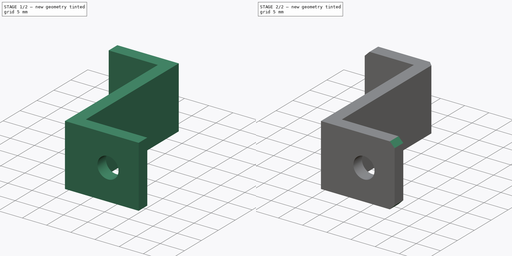
[diagram: build sequence overview — one tinted view per stage of 2, left to right]
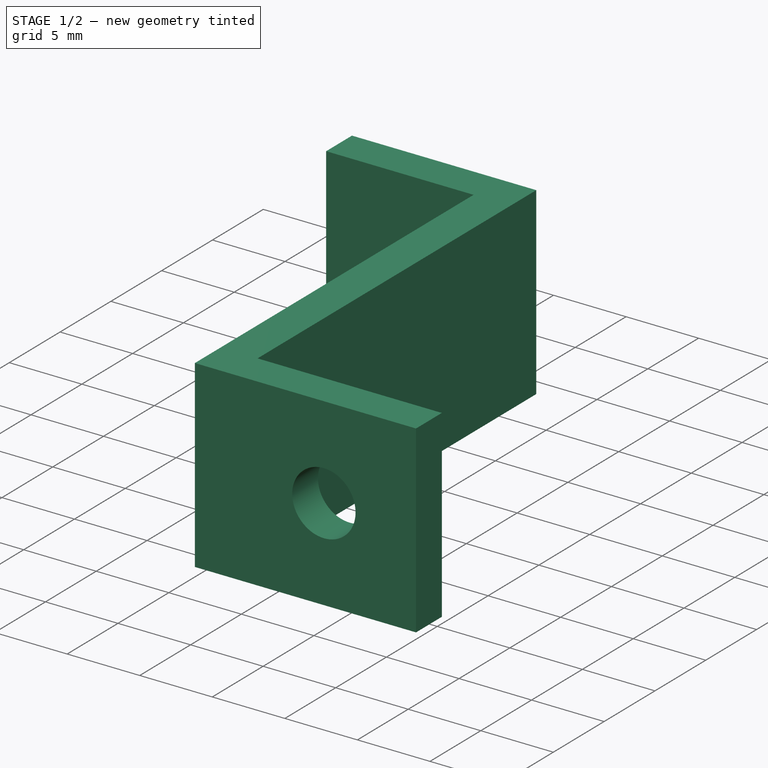
[diagram: stage 1 of 2 — iso view after this stage's code; geometry added in this stage tinted green]
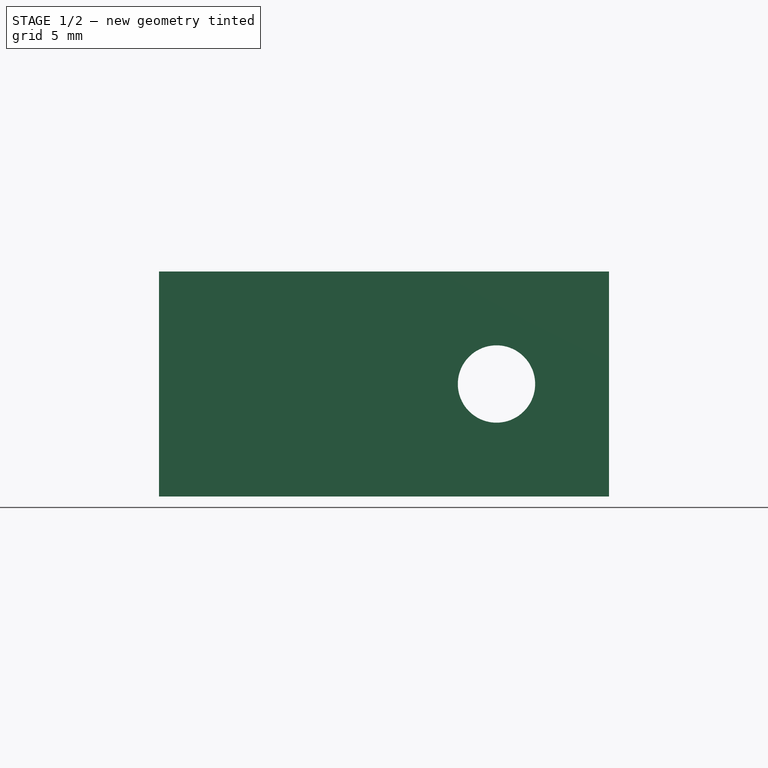
[diagram: stage 1 of 2 — front view after this stage's code; geometry added in this stage tinted green]
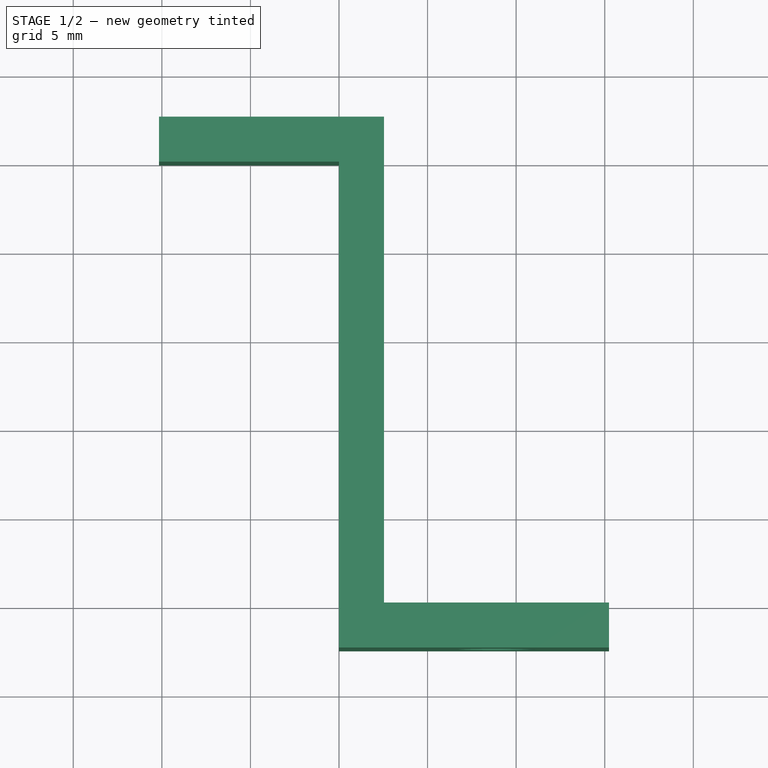
[diagram: stage 1 of 2 — top view after this stage's code; geometry added in this stage tinted green]
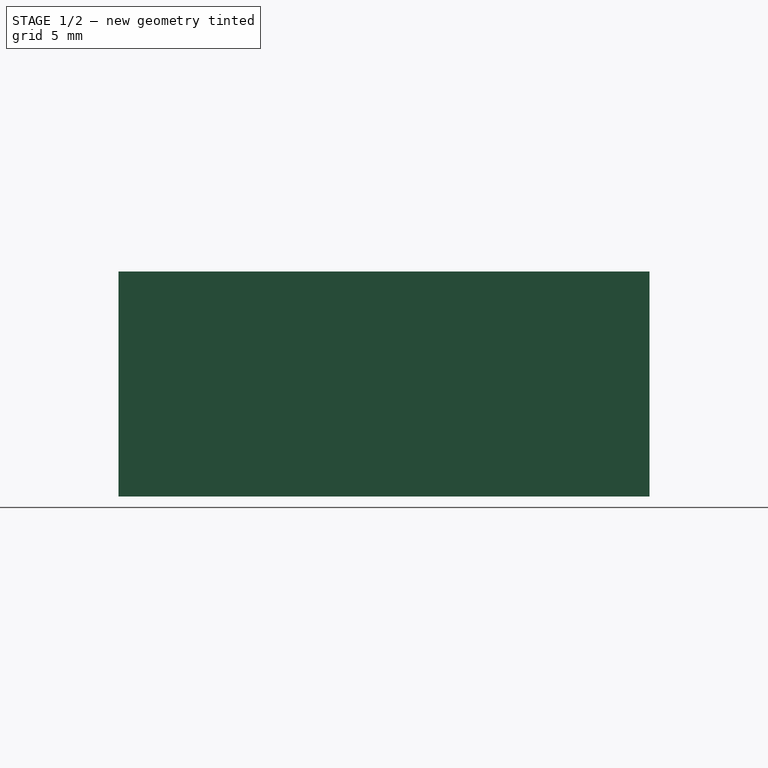
[diagram: stage 1 of 2 — right view after this stage's code; geometry added in this stage tinted green]
FCSTD DOCUMENT  (FreeCAD 0.21R31917 (Git))
Label: ethernet switch brackets
License: All rights reserved
LicenseURL: http://en.wikipedia.org/wiki/All_rights_reserved
objects: Sketcher::SketchObject×2, PartDesign::Pad×1, PartDesign::Pocket×1, PartDesign::Chamfer×1, PartDesign::Body×1
note: 9 computed .brp shape members not serialized (recipe doc carries the construction recipe); baked Part::Feature solids carry a one-line shape summary decoded from their .brp

FEATURE [Sketcher::SketchObject] Sketch
  FullyConstrained = true
  MapMode = 5
  Support = -> [XY_Plane]
  sketch-geometry (9):
    g0: LineSegment StartX=0 StartY=-27.432 StartZ=0 EndX=15.24 EndY=-27.432 EndZ=0
    g1: LineSegment StartX=15.24 StartY=-27.432 StartZ=0 EndX=15.24 EndY=-24.892 EndZ=0
    g2: LineSegment StartX=15.24 StartY=-24.892 StartZ=0 EndX=2.54 EndY=-24.892 EndZ=0
    g3: LineSegment StartX=2.54 StartY=-24.892 StartZ=0 EndX=2.54 EndY=2.54 EndZ=0
    g4: LineSegment StartX=2.54 StartY=2.54 StartZ=0 EndX=-10.16 EndY=2.54 EndZ=0
    g5: LineSegment StartX=-10.16 StartY=2.54 StartZ=0 EndX=-10.16 EndY=0 EndZ=0
    g6: LineSegment StartX=-10.16 StartY=0 StartZ=0 EndX=0 EndY=0 EndZ=0
    g7: LineSegment StartX=0 StartY=0 StartZ=0 EndX=0 EndY=-27.432 EndZ=0
    g8: LineSegment StartX=0 StartY=-24.892 StartZ=0 EndX=2.54 EndY=-24.892 EndZ=0
  constraints (26):
    c: PointOnObject(g0,g-2)
    c: Horizontal(g0)
    c: Coincident(g0,g1)
    c: Coincident(g1,g2)
    c: Horizontal(g2)
    c: Vertical(g1)
    c: DistanceY(g0,g1) = 2.54  'thickness'
    c: Coincident(g2,g3)
    c: Vertical(g3)
    c: Coincident(g3,g4)
    c: Horizontal(g4)
    c: Coincident(g4,g5)
    c: Vertical(g5)
    c: Coincident(g5,g6)
    c: Horizontal(g6)
    c: Coincident(g6,g7)
    c: Coincident(g0,g7)
    c: Equal(g1,g5)
    c: PointOnObject(g8,g7)
    c: Horizontal(g8)
    c: Equal(g8,g1)
    c: Coincident(g6,g-1)
    c: DistanceY(g0,g6) = 27.432
    c: DistanceX(g4,g3) = 12.7  'overhang_len'
    c: Coincident(g8,g2)
    c: Equal(g4,g2)
FEATURE [PartDesign::Pad] Pad
  Direction = (0,0,1)
  Length = 12.7
  Length2 = 10
  Profile = -> Sketch
  ReferenceAxis = -> Sketch [N_Axis]
  Type = 0
FEATURE [Sketcher::SketchObject] Sketch001  label="Holes"
  FullyConstrained = true
  MapMode = 5
  Placement = pos=(0,0,0) rot=(1,0,0;1.5708rad)
  Support = -> [XZ_Plane]
  expr: Constraints[10] = Pad.Length
  expr: Constraints[20] = Sketch.Constraints.thickness
  expr: Constraints[9] = Sketch.Constraints.overhang_len
  sketch-geometry (12):
    g0: LineSegment StartX=2.54 StartY=12.7 StartZ=0 EndX=2.54 EndY=0 EndZ=0
    g1: LineSegment StartX=2.54 StartY=0 StartZ=0 EndX=15.24 EndY=0 EndZ=0
    g2: LineSegment StartX=15.24 StartY=0 StartZ=0 EndX=15.24 EndY=12.7 EndZ=0
    g3: LineSegment StartX=15.24 StartY=12.7 StartZ=0 EndX=2.54 EndY=12.7 EndZ=0
    g4: GeomPoint X=8.89 Y=6.35 Z=0
    g5: LineSegment StartX=2.54 StartY=12.7 StartZ=0 EndX=-10.16 EndY=12.7 EndZ=0
    g6: LineSegment StartX=-10.16 StartY=12.7 StartZ=0 EndX=-10.16 EndY=0 EndZ=0
    g7: LineSegment StartX=-10.16 StartY=0 StartZ=0 EndX=2.54 EndY=0 EndZ=0
    g8: Circle CenterX=8.89 CenterY=6.35 CenterZ=0 NormalX=0 NormalY=0 NormalZ=1 AngleXU=0 Radius=2.18281
    g9: Circle CenterX=-3.81 CenterY=6.35 CenterZ=0 NormalX=0 NormalY=0 NormalZ=1 AngleXU=0 Radius=2.18281
    g10: LineSegment StartX=2.54 StartY=12.7 StartZ=0 EndX=-10.16 EndY=0 EndZ=0
    g11: LineSegment StartX=-10.16 StartY=12.7 StartZ=0 EndX=-3.81 EndY=6.35 EndZ=0
  constraints (30):
    c: Coincident(g0,g1)
    c: Coincident(g1,g2)
    c: Coincident(g2,g3)
    c: Coincident(g3,g0)
    c: Horizontal(g1)
    c: Horizontal(g3)
    c: Vertical(g0)
    c: Vertical(g2)
    c: Symmetric(g1,g0,g4)
    c: DistanceX(g1,g1) = 12.7
    c: DistanceY(g1,g2) = 12.7
    c: Coincident(g5,g0)
    c: Horizontal(g5)
    c: Coincident(g6,g5)
    c: Vertical(g6)
    c: Coincident(g7,g6)
    c: Coincident(g7,g0)
    c: Horizontal(g7)
    c: Equal(g7,g6)
    c: PointOnObject(g0,g-1)
    c: DistanceX(g-1,g0) = 2.54
    c: Coincident(g8,g4)
    c: Coincident(g10,g0)
    c: Coincident(g10,g6)
    c: Coincident(g11,g5)
    c: PointOnObject(g11,g10)
    c: Perpendicular(g11,g10)
    c: Coincident(g9,g11)
    c: Equal(g8,g9)
    c: Diameter(g8) = 4.36562
FEATURE [PartDesign::Pocket] Pocket
  BaseFeature = -> Pad
  Direction = (0,1,2e-16)
  Length = 5
  Length2 = 5
  Profile = -> Sketch001
  ReferenceAxis = -> Sketch001 [N_Axis]
  Reversed = true
  Type = 1
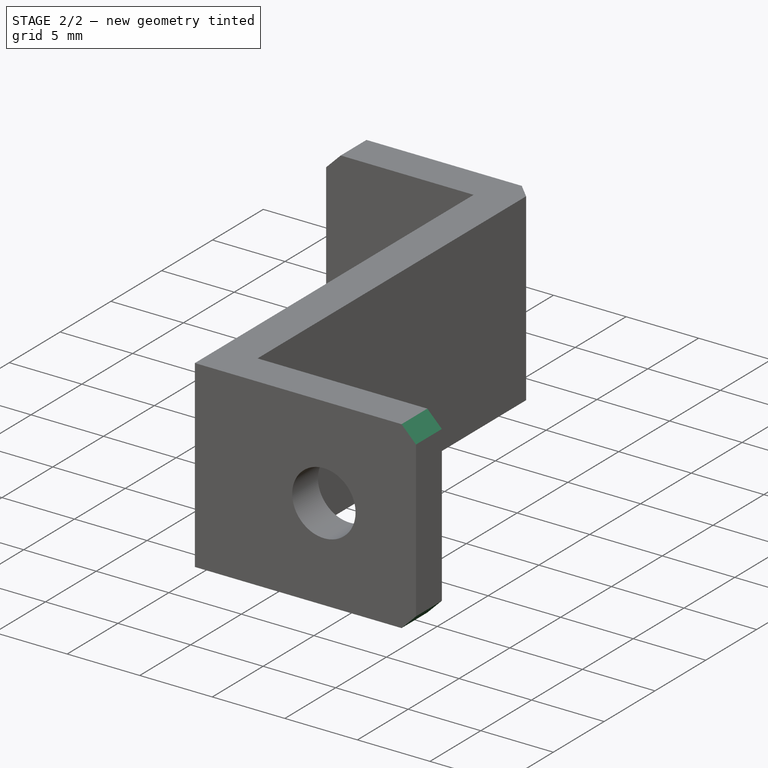
[diagram: stage 2 of 2 — iso view after this stage's code; geometry added in this stage tinted green]
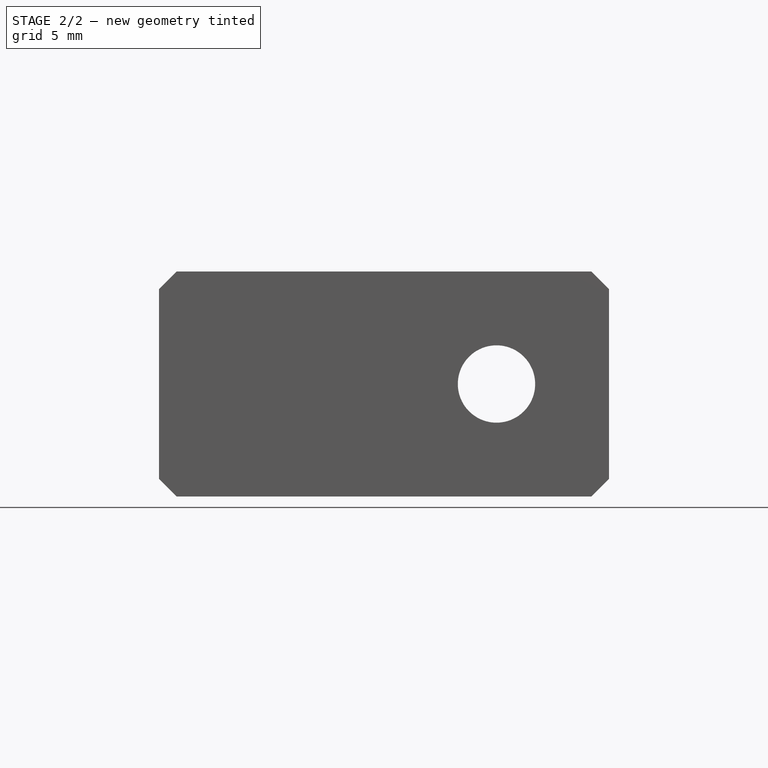
[diagram: stage 2 of 2 — front view after this stage's code; geometry added in this stage tinted green]
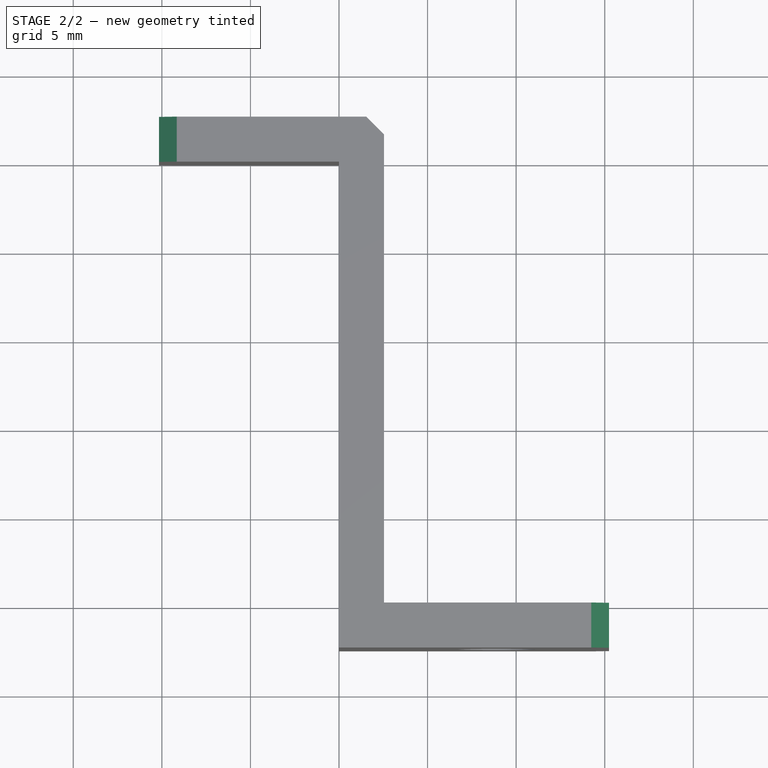
[diagram: stage 2 of 2 — top view after this stage's code; geometry added in this stage tinted green]
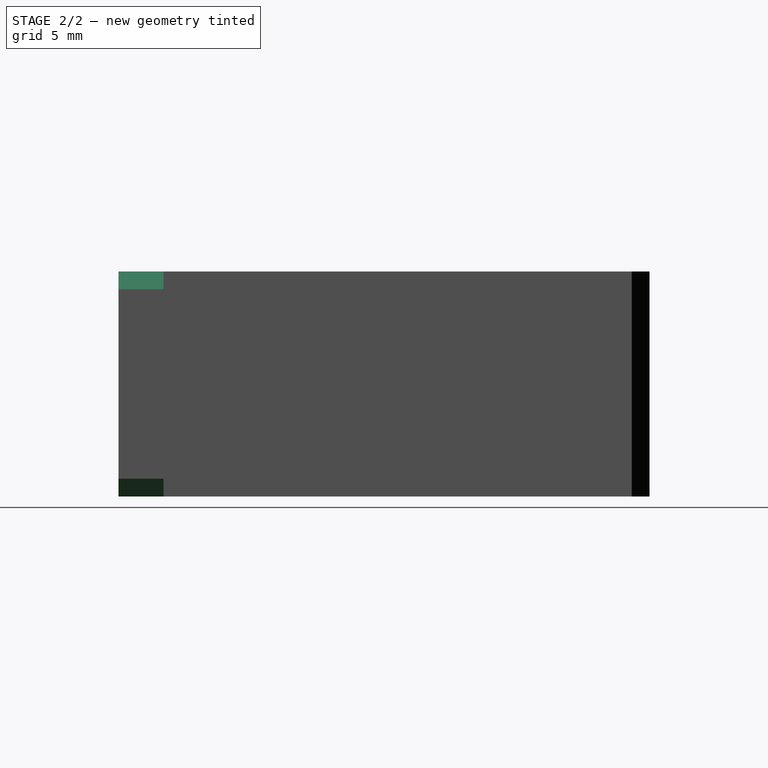
[diagram: stage 2 of 2 — right view after this stage's code; geometry added in this stage tinted green]
FEATURE [PartDesign::Chamfer] Chamfer
  Angle = 45
  Base = -> Pocket [Edge13,Edge19,Edge27,Edge9,Edge15]
  BaseFeature = -> Pocket
  ChamferType = 0
  FlipDirection = false
  Size = 1
  Size2 = 1
  SupportTransform = false
  UseAllEdges = false
FEATURE [PartDesign::Body] Body
  Group = -> [Sketch,Pad,Sketch001,Pocket,Chamfer]
  Origin = -> Origin
  Tip = -> Chamfer
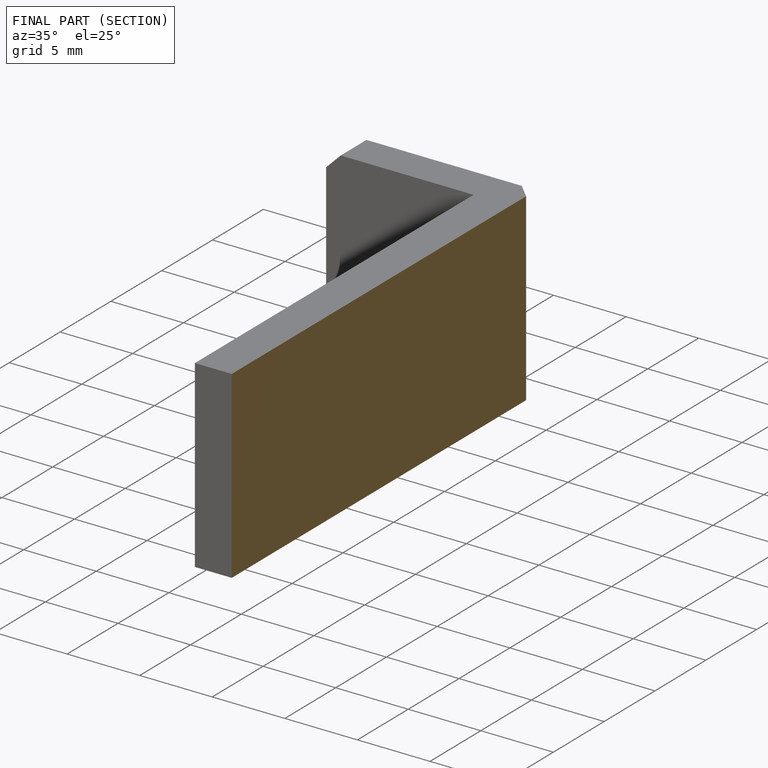
[diagram: finished part — half-section view (interior)]
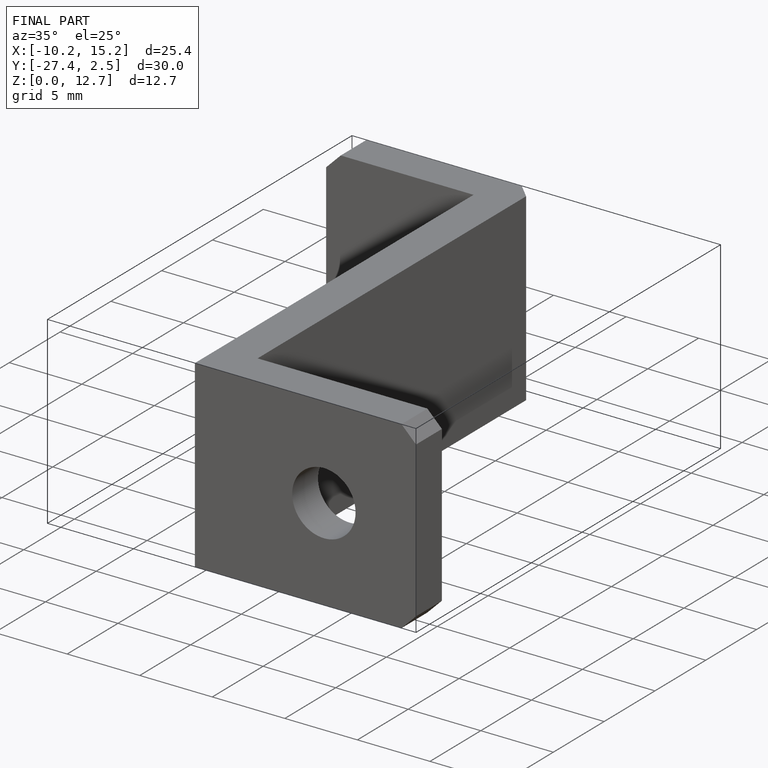
[diagram: finished part — iso view with bounding-box wireframe]
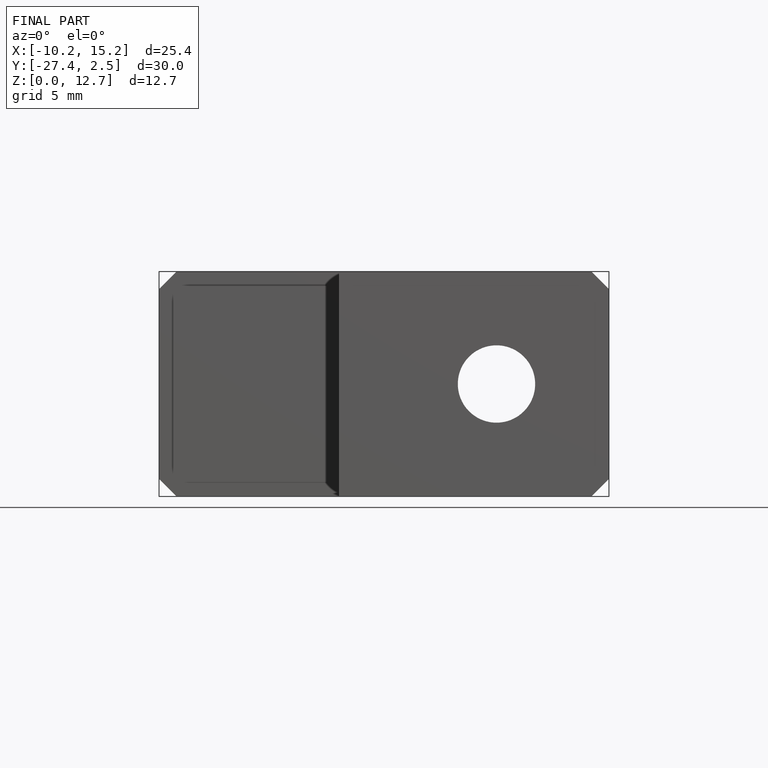
[diagram: finished part — front view with bounding-box wireframe]
